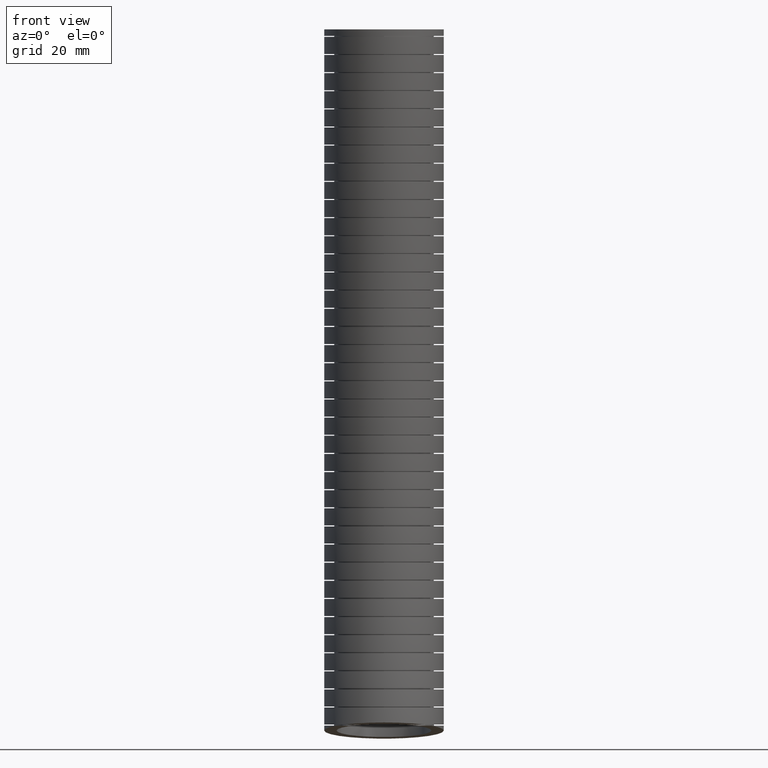
[diagram: clean part render]
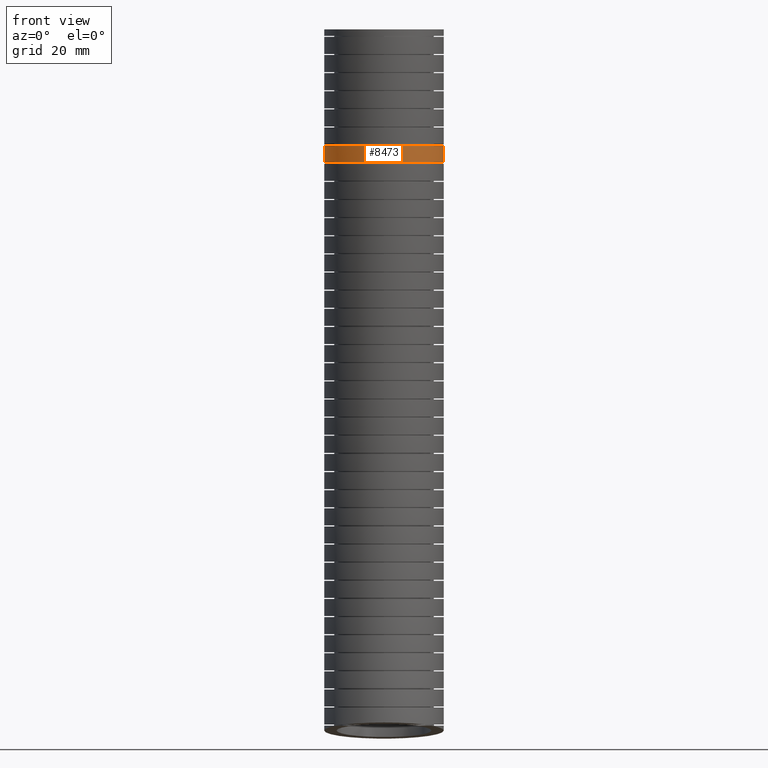
[diagram: same view with one face highlighted and labeled with its STEP entity id]
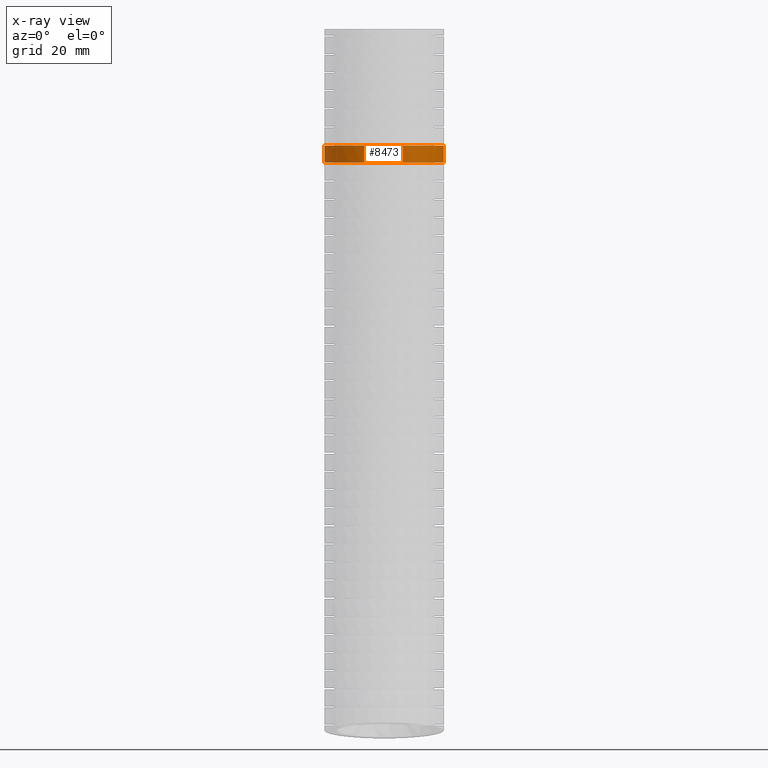
[diagram: x-ray of the same camera — body ghosted, the highlighted face saturated]
A machine part, front view. The second image highlights one B-rep face of the part: STEP entity #8473.
The next image is the same camera in x-ray: the body ghosted, the highlighted face saturated — about 0% of this face is hidden behind the body in this view.
In plain terms, the highlighted face is a freeform B-spline surface patch.
Its self-contained STEP definition (entity closure, byte-faithful):
#5981 = FACE_OUTER_BOUND ( 'NONE', #8482, .T. ) ;
#6007 = CARTESIAN_POINT ( 'NONE',  ( 0.5600000000000000500, 0.05355752464117549000, -1.248911484662903900 ) ) ;
#6021 = CARTESIAN_POINT ( 'NONE',  ( -0.5599999999999997200, 1.265865288775000400, -3.259871941086935900 ) ) ;
#6022 = CARTESIAN_POINT ( 'NONE',  ( -0.5599999999999999400, 1.175456879146091100, -1.239378647153338800 ) ) ;
#6023 = CARTESIAN_POINT ( 'NONE',  ( -0.5599999999999999400, 1.120000000000000100, 0.0000000000000000000 ) ) ;
#6024 = CARTESIAN_POINT ( 'NONE',  ( -0.5599999999999999400, -0.02999999999999993300, -6.569999999999999400 ) ) ;
#6025 = CARTESIAN_POINT ( 'NONE',  ( -0.5600000000000000500, -0.01258014398173738600, -6.380031713690431900 ) ) ;
#6026 = CARTESIAN_POINT ( 'NONE',  ( -0.5600000000000000500, 0.07545784880698562500, -5.419953363865133200 ) ) ;
#6027 = CARTESIAN_POINT ( 'NONE',  ( -0.5600000000000000500, 0.1443774054838787000, -3.232434222864089000 ) ) ;
#6028 = CARTESIAN_POINT ( 'NONE',  ( -0.5600000000000000500, 0.05489119717643127500, -1.228947034284316500 ) ) ;
#6029 = CARTESIAN_POINT ( 'NONE',  ( -0.5600000000000000500, 6.858022075225177600E-017, 0.0000000000000000000 ) ) ;
#6030 = CARTESIAN_POINT ( 'NONE',  ( -0.5600000000000000500, -1.139646258180001100, -6.418061914889245900 ) ) ;
#6031 = CARTESIAN_POINT ( 'NONE',  ( -0.5600000000000000500, -1.122947658111831800, -6.235522807878326500 ) ) ;
#6032 = CARTESIAN_POINT ( 'NONE',  ( -0.5600000000000001600, -1.038554811762124200, -5.312990694533672500 ) ) ;
#6033 = CARTESIAN_POINT ( 'NONE',  ( -0.5600000000000002800, -0.9771104778072428100, -3.204996504641241200 ) ) ;
#6034 = CARTESIAN_POINT ( 'NONE',  ( -0.5600000000000002800, -1.065674484793228200, -1.218515421415294200 ) ) ;
#6035 = CARTESIAN_POINT ( 'NONE',  ( -0.5600000000000001600, -1.119999999999999900, 0.0000000000000000000 ) ) ;
#6036 = CARTESIAN_POINT ( 'NONE',  ( 0.5599999999999999400, -1.139646258180001100, -6.418061914889245900 ) ) ;
#6037 = CARTESIAN_POINT ( 'NONE',  ( 0.5599999999999999400, -1.122947658111831800, -6.235522807878326500 ) ) ;
#6038 = CARTESIAN_POINT ( 'NONE',  ( 0.5600000000000000500, -1.038554811762124200, -5.312990694533672500 ) ) ;
#6039 = CARTESIAN_POINT ( 'NONE',  ( 0.5600000000000000500, -0.9771104778072428100, -3.204996504641241200 ) ) ;
#6040 = CARTESIAN_POINT ( 'NONE',  ( 0.5600000000000001600, -1.065674484793228500, -1.218515421415294200 ) ) ;
#6041 = CARTESIAN_POINT ( 'NONE',  ( 0.5600000000000000500, -1.120000000000000100, 0.0000000000000000000 ) ) ;
#6042 = CARTESIAN_POINT ( 'NONE',  ( 0.5599999999999999400, -0.02999999999999999900, -6.569999999999999400 ) ) ;
#6043 = CARTESIAN_POINT ( 'NONE',  ( 0.5600000000000000500, -0.01258014398173745700, -6.380031713690431900 ) ) ;
#6044 = CARTESIAN_POINT ( 'NONE',  ( 0.5600000000000000500, 0.07545784880698555600, -5.419953363865133200 ) ) ;
#6045 = CARTESIAN_POINT ( 'NONE',  ( 0.5600000000000000500, 0.1443774054838786700, -3.232434222864089000 ) ) ;
#6046 = CARTESIAN_POINT ( 'NONE',  ( 0.5600000000000000500, 0.05489119717643119900, -1.228947034284316500 ) ) ;
#6047 = CARTESIAN_POINT ( 'NONE',  ( 0.5600000000000000500, 0.0000000000000000000, 0.0000000000000000000 ) ) ;
#6054 =( BOUNDED_SURFACE ( )  B_SPLINE_SURFACE ( 3, 3, ( 
 ( #6047, #6046, #6045, #6044, #6043, #6042 ),
 ( #6041, #6040, #6039, #6038, #6037, #6036 ),
 ( #6035, #6034, #6033, #6032, #6031, #6030 ),
 ( #6029, #6028, #6027, #6026, #6025, #6024 ),
 ( #6023, #6022, #6021, #6077, #6076, #6075 ),
 ( #6074, #6073, #6072, #6071, #6070, #6069 ),
 ( #6068, #6067, #6066, #6065, #6064, #6063 ) ),
 .UNSPECIFIED., .F., .F., .F. ) 
 B_SPLINE_SURFACE_WITH_KNOTS ( ( 4, 3, 4 ),
 ( 4, 1, 1, 4 ),
 ( 0.0000000000000000000, 0.5000000000000000000, 1.000000000000000000 ),
 ( 0.0000000000000000000, 0.5600000000000000500, 0.9129383075960209000, 1.000000000000000000 ),
 .UNSPECIFIED. ) 
 GEOMETRIC_REPRESENTATION_ITEM ( )  RATIONAL_B_SPLINE_SURFACE ( (
 ( 1.000000000000000000, 1.000000000000000000, 1.000000000000000000, 1.000000000000000000, 1.000000000000000000, 1.000000000000000000),
 ( 0.3333333333333333100, 0.3333333333333333100, 0.3333333333333333100, 0.3333333333333333100, 0.3333333333333333100, 0.3333333333333333100),
 ( 0.3333333333333333100, 0.3333333333333333100, 0.3333333333333333100, 0.3333333333333333100, 0.3333333333333333100, 0.3333333333333333100),
 ( 1.000000000000000000, 1.000000000000000000, 1.000000000000000000, 1.000000000000000000, 1.000000000000000000, 1.000000000000000000),
 ( 0.3333333333333333100, 0.3333333333333333100, 0.3333333333333333100, 0.3333333333333333100, 0.3333333333333333100, 0.3333333333333333100),
 ( 0.3333333333333333100, 0.3333333333333333100, 0.3333333333333333100, 0.3333333333333333100, 0.3333333333333333100, 0.3333333333333333100),
 ( 1.000000000000000000, 1.000000000000000000, 1.000000000000000000, 1.000000000000000000, 1.000000000000000000, 1.000000000000000000) ) ) 
 REPRESENTATION_ITEM ( '' )  SURFACE ( )  );
#6055 = CARTESIAN_POINT ( 'NONE',  ( 0.5563690821269572400, -0.02621648784537089800, -1.089047162725782900 ) ) ;
#6056 = CARTESIAN_POINT ( 'NONE',  ( 0.5600000000000000500, 0.01016611853251335100, -1.089047162725858000 ) ) ;
#6057 = CARTESIAN_POINT ( 'NONE',  ( 0.5600000000000000500, 0.04716707724612261000, -1.089047162725858400 ) ) ;
#6058 = B_SPLINE_CURVE_WITH_KNOTS ( 'NONE', 3,
 ( #6057, #6056, #6055, #6127, #6126, #6125, #6124, #6123, #6122, #6121, #6120, #6119, #6118, #6117, #6116, #6115, #6114, #6113, #6112, #6111, #6110, #6109, #6108, #6107, #6106, #6105, #6104, #6103, #6102, #6101, #6099, #6098, #6097, #6096, #6095, #6094, #6093, #6092, #6091, #6090, #6089, #6088, #6087, #6086, #6085, #6084, #6083, #6082, #6081 ),
 .UNSPECIFIED., .F., .F.,
 ( 4, 2, 2, 2, 2, 2, 2, 2, 2, 1, 2, 2, 2, 2, 2, 2, 2, 2, 2, 2, 2, 2, 2, 2, 4 ),
 ( 0.0000000000000000000, 0.002779455216346901000, 0.004169182824520352600, 0.005558910432693804600, 0.008338365649040703500, 0.009728093257214152900, 0.01111782086538760400, 0.01389727608173450800, 0.01528700368990795800, 0.01667673129808141000, 0.01806645890625486000, 0.01945618651442831300, 0.02223564173077521900, 0.02362536933894867500, 0.02501509694712212800, 0.02779455216346903700, 0.02918427977164248600, 0.03057400737981593600, 0.03335346259616284200, 0.03613291781250974700, 0.03752264542068319700, 0.03891237302885665300, 0.04169182824520355200, 0.04308155585337700800, 0.04447128346155045800 ),
 .UNSPECIFIED. ) ;
#6063 = CARTESIAN_POINT ( 'NONE',  ( 0.5599999999999999400, -0.02999999999999999900, -6.569999999999999400 ) ) ;
#6064 = CARTESIAN_POINT ( 'NONE',  ( 0.5600000000000000500, -0.01258014398173745700, -6.380031713690431900 ) ) ;
#6065 = CARTESIAN_POINT ( 'NONE',  ( 0.5600000000000000500, 0.07545784880698555600, -5.419953363865133200 ) ) ;
#6066 = CARTESIAN_POINT ( 'NONE',  ( 0.5600000000000000500, 0.1443774054838786700, -3.232434222864089000 ) ) ;
#6067 = CARTESIAN_POINT ( 'NONE',  ( 0.5600000000000000500, 0.05489119717643119900, -1.228947034284316500 ) ) ;
#6068 = CARTESIAN_POINT ( 'NONE',  ( 0.5600000000000000500, 0.0000000000000000000, 0.0000000000000000000 ) ) ;
#6069 = CARTESIAN_POINT ( 'NONE',  ( 0.5599999999999999400, 1.079646258180001500, -6.721938085110752900 ) ) ;
#6070 = CARTESIAN_POINT ( 'NONE',  ( 0.5599999999999999400, 1.097787370148357100, -6.524540619502538200 ) ) ;
#6071 = CARTESIAN_POINT ( 'NONE',  ( 0.5600000000000000500, 1.189470509376095600, -5.526916033196593000 ) ) ;
#6072 = CARTESIAN_POINT ( 'NONE',  ( 0.5600000000000000500, 1.265865288775000400, -3.259871941086935900 ) ) ;
#6073 = CARTESIAN_POINT ( 'NONE',  ( 0.5600000000000001600, 1.175456879146091100, -1.239378647153338800 ) ) ;
#6074 = CARTESIAN_POINT ( 'NONE',  ( 0.5600000000000000500, 1.120000000000000100, 0.0000000000000000000 ) ) ;
#6075 = CARTESIAN_POINT ( 'NONE',  ( -0.5599999999999997200, 1.079646258180001500, -6.721938085110752900 ) ) ;
#6076 = CARTESIAN_POINT ( 'NONE',  ( -0.5599999999999997200, 1.097787370148357100, -6.524540619502538200 ) ) ;
#6077 = CARTESIAN_POINT ( 'NONE',  ( -0.5599999999999999400, 1.189470509376095600, -5.526916033196593000 ) ) ;
#6081 = CARTESIAN_POINT ( 'NONE',  ( -0.5600000000000000500, 0.04716707724611654600, -1.089047162725782700 ) ) ;
#6082 = CARTESIAN_POINT ( 'NONE',  ( -0.5600000000000000500, 0.02889245305908497200, -1.089047162725782300 ) ) ;
#6083 = CARTESIAN_POINT ( 'NONE',  ( -0.5591078067623438400, 0.01056117827138951400, -1.089047162725782500 ) ) ;
#6084 = CARTESIAN_POINT ( 'NONE',  ( -0.5554784370594912900, -0.02621852014983772800, -1.089047162725782500 ) ) ;
#6085 = CARTESIAN_POINT ( 'NONE',  ( -0.5527597932708072600, -0.04443877423372682300, -1.089047162725783200 ) ) ;
#6086 = CARTESIAN_POINT ( 'NONE',  ( -0.5420256092301846100, -0.09825534681350804600, -1.089047162725782900 ) ) ;
#6087 = CARTESIAN_POINT ( 'NONE',  ( -0.5314411384794581700, -0.1331696313553931700, -1.089047162725782100 ) ) ;
#6088 = CARTESIAN_POINT ( 'NONE',  ( -0.5103584566301828700, -0.1840780807314318400, -1.089047162725782100 ) ) ;
#6089 = CARTESIAN_POINT ( 'NONE',  ( -0.5024125161904190500, -0.2008697284440287800, -1.089047162725782500 ) ) ;
#6090 = CARTESIAN_POINT ( 'NONE',  ( -0.4850777789584045900, -0.2332629753442277700, -1.089047162725782700 ) ) ;
#6091 = CARTESIAN_POINT ( 'NONE',  ( -0.4756667166178329400, -0.2489383610413580000, -1.089047162725781800 ) ) ;
#6092 = CARTESIAN_POINT ( 'NONE',  ( -0.4452486071953349300, -0.2944331564915642600, -1.089047162725782100 ) ) ;
#6093 = CARTESIAN_POINT ( 'NONE',  ( -0.4220301181254654300, -0.3227843017137769200, -1.089047162725782700 ) ) ;
#6094 = CARTESIAN_POINT ( 'NONE',  ( -0.3697403010285539300, -0.3750504599813935200, -1.089047162725782700 ) ) ;
#6095 = CARTESIAN_POINT ( 'NONE',  ( -0.3414548555695146600, -0.3981986120486562500, -1.089047162725782900 ) ) ;
#6096 = CARTESIAN_POINT ( 'NONE',  ( -0.2959368537386231100, -0.4286121416989330200, -1.089047162725782900 ) ) ;
#6097 = CARTESIAN_POINT ( 'NONE',  ( -0.2802454143436953800, -0.4380265697161583900, -1.089047162725782500 ) ) ;
#6098 = CARTESIAN_POINT ( 'NONE',  ( -0.2477995315463289200, -0.4553730923144604400, -1.089047162725782300 ) ) ;
#6099 = CARTESIAN_POINT ( 'NONE',  ( -0.2310146562319071700, -0.4633052030594848600, -1.089047162725782500 ) ) ;
#6101 = CARTESIAN_POINT ( 'NONE',  ( -0.1801628024516297400, -0.4843417772591222500, -1.089047162725782500 ) ) ;
#6102 = CARTESIAN_POINT ( 'NONE',  ( -0.1452525925235431700, -0.4949191531025118300, -1.089047162725783200 ) ) ;
#6103 = CARTESIAN_POINT ( 'NONE',  ( -0.09138236213584259600, -0.5056439012355058400, -1.089047162725783200 ) ) ;
#6104 = CARTESIAN_POINT ( 'NONE',  ( -0.07309019284118002700, -0.5083630622634587300, -1.089047162725783200 ) ) ;
#6105 = CARTESIAN_POINT ( 'NONE',  ( -0.03637395074050998200, -0.5119689075820101900, -1.089047162725783400 ) ) ;
#6106 = CARTESIAN_POINT ( 'NONE',  ( -0.01806418917235578400, -0.5128535550888248000, -1.089047162725782700 ) ) ;
#6107 = CARTESIAN_POINT ( 'NONE',  ( 0.03672430640954552800, -0.5128341200801191900, -1.089047162725782900 ) ) ;
#6108 = CARTESIAN_POINT ( 'NONE',  ( 0.07306359307618255600, -0.5092821383698059600, -1.089047162725782500 ) ) ;
#6109 = CARTESIAN_POINT ( 'NONE',  ( 0.1272853155715120400, -0.4985005194209546400, -1.089047162725782700 ) ) ;
#6110 = CARTESIAN_POINT ( 'NONE',  ( 0.1452538431205938100, -0.4939907677162864700, -1.089047162725782100 ) ) ;
#6111 = CARTESIAN_POINT ( 'NONE',  ( 0.1803127120075550000, -0.4833395152646128300, -1.089047162725782100 ) ) ;
#6112 = CARTESIAN_POINT ( 'NONE',  ( 0.2146865328681212800, -0.4710216538645437000, -1.089047162725782900 ) ) ;
#6113 = CARTESIAN_POINT ( 'NONE',  ( 0.2477087168662430700, -0.4554154827356228200, -1.089047162725782500 ) ) ;
#6114 = CARTESIAN_POINT ( 'NONE',  ( 0.2800447289757440600, -0.4381399684867227600, -1.089047162725782500 ) ) ;
#6115 = CARTESIAN_POINT ( 'NONE',  ( 0.2959543904027694400, -0.4286075919701570800, -1.089047162725782700 ) ) ;
#6116 = CARTESIAN_POINT ( 'NONE',  ( 0.3418741074136186800, -0.3979040404964459500, -1.089047162725782700 ) ) ;
#6117 = CARTESIAN_POINT ( 'NONE',  ( 0.3700722730204975600, -0.3747221172557372300, -1.089047162725782300 ) ) ;
#6118 = CARTESIAN_POINT ( 'NONE',  ( 0.4088317083506535800, -0.3359749975639826900, -1.089047162725782700 ) ) ;
#6119 = CARTESIAN_POINT ( 'NONE',  ( 0.4211576669636890600, -0.3223921805920385000, -1.089047162725781600 ) ) ;
#6120 = CARTESIAN_POINT ( 'NONE',  ( 0.4445836193279854600, -0.2938493477559342400, -1.089047162725781800 ) ) ;
#6121 = CARTESIAN_POINT ( 'NONE',  ( 0.4555713642650000600, -0.2790154783201001000, -1.089047162725782700 ) ) ;
#6122 = CARTESIAN_POINT ( 'NONE',  ( 0.4860560460008012700, -0.2333558446849289000, -1.089047162725782700 ) ) ;
#6123 = CARTESIAN_POINT ( 'NONE',  ( 0.5032601076496331400, -0.2011875398125779800, -1.089047162725783200 ) ) ;
#6124 = CARTESIAN_POINT ( 'NONE',  ( 0.5243454817308296200, -0.1503189113218271800, -1.089047162725783200 ) ) ;
#6125 = CARTESIAN_POINT ( 'NONE',  ( 0.5306035252282932400, -0.1328314398175387800, -1.089047162725782500 ) ) ;
#6126 = CARTESIAN_POINT ( 'NONE',  ( 0.5412652739874608300, -0.09764619753670568400, -1.089047162725782700 ) ) ;
#6127 = CARTESIAN_POINT ( 'NONE',  ( 0.5456990403613372100, -0.07990079716797178500, -1.089047162725782500 ) ) ;
#6154 = CARTESIAN_POINT ( 'NONE',  ( 0.2475562397328340000, -0.4490962774912301600, -1.248911484662816900 ) ) ;
#6155 = CARTESIAN_POINT ( 'NONE',  ( 0.2309905386733329100, -0.4569149262331652600, -1.248911484662817500 ) ) ;
#6156 = CARTESIAN_POINT ( 'NONE',  ( 0.1803872300789561800, -0.4778550903222025200, -1.248911484662817500 ) ) ;
#6157 = CARTESIAN_POINT ( 'NONE',  ( 0.1454521097936397300, -0.4884849558672459400, -1.248911484662818000 ) ) ;
#6158 = CARTESIAN_POINT ( 'NONE',  ( 0.09119466427629704900, -0.4992806072055411300, -1.248911484662818400 ) ) ;
#6159 = CARTESIAN_POINT ( 'NONE',  ( 0.07289695278637067800, -0.5019851897764678900, -1.248911484662816900 ) ) ;
#6160 = CARTESIAN_POINT ( 'NONE',  ( 0.03645538830707099900, -0.5055603144543369100, -1.248911484662816200 ) ) ;
#6161 = CARTESIAN_POINT ( 'NONE',  ( -1.231373117339250200E-006, -0.5073369313607474200, -1.248911484662819300 ) ) ;
#6162 = CARTESIAN_POINT ( 'NONE',  ( -0.03648760423618823600, -0.5055592064130415300, -1.248911484662817300 ) ) ;
#6163 = CARTESIAN_POINT ( 'NONE',  ( -0.07298910666981868500, -0.5019740894266339100, -1.248911484662817100 ) ) ;
#6164 = CARTESIAN_POINT ( 'NONE',  ( -0.09134793640985629200, -0.4992538273258975700, -1.248911484662816700 ) ) ;
#6165 = CARTESIAN_POINT ( 'NONE',  ( -0.1454730537492283900, -0.4884733211737716800, -1.248911484662816700 ) ) ;
#6166 = CARTESIAN_POINT ( 'NONE',  ( -0.1803859564135122100, -0.4778578441582387300, -1.248911484662818200 ) ) ;
#6167 = CARTESIAN_POINT ( 'NONE',  ( -0.2310348954070357000, -0.4568954561329670000, -1.248911484662818200 ) ) ;
#6168 = CARTESIAN_POINT ( 'NONE',  ( -0.2476291011765666700, -0.4490621618019061700, -1.248911484662818000 ) ) ;
#6169 = CARTESIAN_POINT ( 'NONE',  ( -0.2802203564017584100, -0.4316464755841703000, -1.248911484662818000 ) ) ;
#6170 = CARTESIAN_POINT ( 'NONE',  ( -0.2960138343334974800, -0.4221683655839827400, -1.248911484662816700 ) ) ;
#6171 = CARTESIAN_POINT ( 'NONE',  ( -0.3416285326433141100, -0.3916752081803947500, -1.248911484662816700 ) ) ;
#6172 = CARTESIAN_POINT ( 'NONE',  ( -0.3698375968407117700, -0.3685478256033168900, -1.248911484662817300 ) ) ;
#6173 = CARTESIAN_POINT ( 'NONE',  ( -0.4088094874411229400, -0.3296072007414244100, -1.248911484662817100 ) ) ;
#6174 = CARTESIAN_POINT ( 'NONE',  ( -0.4212848736879374900, -0.3158465287737846100, -1.248911484662816000 ) ) ;
#6175 = CARTESIAN_POINT ( 'NONE',  ( -0.4445849291220339000, -0.2874470428845297100, -1.248911484662816700 ) ) ;
#6176 = CARTESIAN_POINT ( 'NONE',  ( -0.4554691231792151700, -0.2727596044465415100, -1.248911484662817100 ) ) ;
#6177 = CARTESIAN_POINT ( 'NONE',  ( -0.4858718058425621800, -0.2272645160538247800, -1.248911484662817100 ) ) ;
#6178 = CARTESIAN_POINT ( 'NONE',  ( -0.5031880142313082100, -0.1949767504488243200, -1.248911484662817300 ) ) ;
#6179 = CARTESIAN_POINT ( 'NONE',  ( -0.5314876779978902100, -0.1266858516467396800, -1.248911484662817300 ) ) ;
#6180 = CARTESIAN_POINT ( 'NONE',  ( -0.5420617534712719500, -0.09170436754115600400, -1.248911484662818400 ) ) ;
#6181 = CARTESIAN_POINT ( 'NONE',  ( -0.5527618107419514100, -0.03802545351515827100, -1.248911484662818200 ) ) ;
#6182 = CARTESIAN_POINT ( 'NONE',  ( -0.5554619739491171200, -0.01992988366230130000, -1.248911484662816900 ) ) ;
#6183 = CARTESIAN_POINT ( 'NONE',  ( -0.5590868386708881500, 0.01667637033572144700, -1.248911484662816900 ) ) ;
#6184 = CARTESIAN_POINT ( 'NONE',  ( -0.5600000000000000500, 0.03521617214773529300, -1.248911484662816900 ) ) ;
#6185 = CARTESIAN_POINT ( 'NONE',  ( -0.5600000000000001600, 0.05355752464116872400, -1.248911484662817100 ) ) ;
#6186 = B_SPLINE_CURVE_WITH_KNOTS ( 'NONE', 3,
 ( #6185, #6184, #6183, #6182, #6181, #6180, #6179, #6178, #6177, #6176, #6175, #6174, #6173, #6172, #6171, #6170, #6169, #6168, #6167, #6166, #6165, #6164, #6163, #6162, #6161, #6160, #6159, #6158, #6157, #6156, #6155, #6154, #6227, #6226, #6225, #6224, #6223, #6222, #6221, #6220, #6219, #6218, #6217, #6216, #6215, #6214, #6213, #6212, #6211, #6210, #6209 ),
 .UNSPECIFIED., .F., .F.,
 ( 4, 2, 2, 2, 2, 2, 2, 2, 2, 2, 2, 2, 1, 2, 2, 2, 2, 2, 2, 2, 2, 2, 2, 2, 2, 4 ),
 ( 0.04494636389922344200, 0.04635101686488349300, 0.04775566983054355100, 0.05056497576186365400, 0.05337428169318376300, 0.05477893465884381400, 0.05618358762450386500, 0.05899289355582396100, 0.06039754652148401900, 0.06180219948714407700, 0.06461150541846418000, 0.06601615838412422400, 0.06742081134978428200, 0.06882546431544434000, 0.07023011728110438400, 0.07303942321242448700, 0.07444407617808454500, 0.07584872914374460300, 0.07865803507506470600, 0.08006268804072475000, 0.08146734100638480800, 0.08427664693770492400, 0.08568129990336499600, 0.08708595286902504100, 0.08849060583468509900, 0.08989525880034517100 ),
 .UNSPECIFIED. ) ;
#6187 = CARTESIAN_POINT ( 'NONE',  ( -0.5600000000000000500, 0.04716707724611654600, -1.089047162725782700 ) ) ;
#6188 = CARTESIAN_POINT ( 'NONE',  ( 0.5600000000000000500, 0.04716707724612261000, -1.089047162725858400 ) ) ;
#6189 = CARTESIAN_POINT ( 'NONE',  ( -0.5600000000000001600, 0.05355752464116872400, -1.248911484662817100 ) ) ;
#6202 = CARTESIAN_POINT ( 'NONE',  ( -0.5600000000000001600, 0.05355752464116872400, -1.248911484662817100 ) ) ;
#6203 = CARTESIAN_POINT ( 'NONE',  ( -0.5600000000000001600, 0.05146235634999999500, -1.195624850248680800 ) ) ;
#6204 = CARTESIAN_POINT ( 'NONE',  ( -0.5600000000000001600, 0.04933064794659684800, -1.142336677282048500 ) ) ;
#6205 = CARTESIAN_POINT ( 'NONE',  ( -0.5600000000000000500, 0.04716707724611654600, -1.089047162725782700 ) ) ;
#6207 = B_SPLINE_CURVE_WITH_KNOTS ( 'NONE', 3,
 ( #6205, #6204, #6203, #6202 ),
 .UNSPECIFIED., .F., .F.,
 ( 4, 4 ),
 ( 0.1654265128246797900, 0.1897133572769286700 ),
 .UNSPECIFIED. ) ;
#6209 = CARTESIAN_POINT ( 'NONE',  ( 0.5600000000000000500, 0.05355752464117549000, -1.248911484662903900 ) ) ;
#6210 = CARTESIAN_POINT ( 'NONE',  ( 0.5600000000000002800, 0.03505987482405598800, -1.248911484662904600 ) ) ;
#6211 = CARTESIAN_POINT ( 'NONE',  ( 0.5590772633870690900, 0.01655045644354477900, -1.248911484662816700 ) ) ;
#6212 = CARTESIAN_POINT ( 'NONE',  ( 0.5554541817874068000, -0.01997921709175033700, -1.248911484662816200 ) ) ;
#6213 = CARTESIAN_POINT ( 'NONE',  ( 0.5527570713635878700, -0.03805256153634327400, -1.248911484662816700 ) ) ;
#6214 = CARTESIAN_POINT ( 'NONE',  ( 0.5456253535445666500, -0.07382354046175219900, -1.248911484662817100 ) ) ;
#6215 = CARTESIAN_POINT ( 'NONE',  ( 0.5411907061113681000, -0.09152116628489843900, -1.248911484662817100 ) ) ;
#6216 = CARTESIAN_POINT ( 'NONE',  ( 0.5305670526676833400, -0.1265370618756818400, -1.248911484662817100 ) ) ;
#6217 = CARTESIAN_POINT ( 'NONE',  ( 0.5243549660557007600, -0.1439104520103967900, -1.248911484662816700 ) ) ;
#6218 = CARTESIAN_POINT ( 'NONE',  ( 0.5031374541694178000, -0.1950738000752299800, -1.248911484662816200 ) ) ;
#6219 = CARTESIAN_POINT ( 'NONE',  ( 0.4858713405564257200, -0.2272677441874444100, -1.248911484662816900 ) ) ;
#6220 = CARTESIAN_POINT ( 'NONE',  ( 0.4554513607135618500, -0.2727849174410159100, -1.248911484662816700 ) ) ;
#6221 = CARTESIAN_POINT ( 'NONE',  ( 0.4445523844804684700, -0.2874916344860607400, -1.248911484662817100 ) ) ;
#6222 = CARTESIAN_POINT ( 'NONE',  ( 0.4211965517054537800, -0.3159492310116818200, -1.248911484662818000 ) ) ;
#6223 = CARTESIAN_POINT ( 'NONE',  ( 0.4087342645303476100, -0.3296858053809232900, -1.248911484662817100 ) ) ;
#6224 = CARTESIAN_POINT ( 'NONE',  ( 0.3698298441684213000, -0.3685486668620843700, -1.248911484662817100 ) ) ;
#6225 = CARTESIAN_POINT ( 'NONE',  ( 0.3416313090614933000, -0.3916774209650668600, -1.248911484662817100 ) ) ;
#6226 = CARTESIAN_POINT ( 'NONE',  ( 0.2959479141777690000, -0.4222103941043949300, -1.248911484662817100 ) ) ;
#6227 = CARTESIAN_POINT ( 'NONE',  ( 0.2800661657603645800, -0.4317336554595571100, -1.248911484662816200 ) ) ;
#8315 = ORIENTED_EDGE ( 'NONE', *, *, #17588, .F. ) ;
#8473 = ADVANCED_FACE ( 'NONE', ( #5981 ), #6054, .T. ) ;
#8474 = VERTEX_POINT ( 'NONE', #6007 ) ;
#8482 = EDGE_LOOP ( 'NONE', ( #8488, #8491, #8495, #8315 ) ) ;
#8483 = EDGE_CURVE ( 'NONE', #8493, #8497, #6058, .T. ) ;
#8488 = ORIENTED_EDGE ( 'NONE', *, *, #8483, .T. ) ;
#8491 = ORIENTED_EDGE ( 'NONE', *, *, #8501, .T. ) ;
#8492 = VERTEX_POINT ( 'NONE', #6189 ) ;
#8493 = VERTEX_POINT ( 'NONE', #6188 ) ;
#8494 = EDGE_CURVE ( 'NONE', #8492, #8474, #6186, .T. ) ;
#8495 = ORIENTED_EDGE ( 'NONE', *, *, #8494, .T. ) ;
#8497 = VERTEX_POINT ( 'NONE', #6187 ) ;
#8501 = EDGE_CURVE ( 'NONE', #8497, #8492, #6207, .T. ) ;
#17588 = EDGE_CURVE ( 'NONE', #8493, #8474, #18176, .T. ) ;
#18169 = CARTESIAN_POINT ( 'NONE',  ( 0.5600000000000000500, 0.05146235635000324200, -1.195624850248764100 ) ) ;
#18170 = CARTESIAN_POINT ( 'NONE',  ( 0.5600000000000000500, 0.04933064794659998400, -1.142336677282128000 ) ) ;
#18171 = CARTESIAN_POINT ( 'NONE',  ( 0.5600000000000000500, 0.04716707724612261000, -1.089047162725858400 ) ) ;
#18176 = B_SPLINE_CURVE_WITH_KNOTS ( 'NONE', 3,
 ( #18171, #18170, #18169, #18207 ),
 .UNSPECIFIED., .F., .F.,
 ( 4, 4 ),
 ( 0.1654265128246913400, 0.1897133572769419100 ),
 .UNSPECIFIED. ) ;
#18207 = CARTESIAN_POINT ( 'NONE',  ( 0.5600000000000000500, 0.05355752464117549000, -1.248911484662903900 ) ) ;